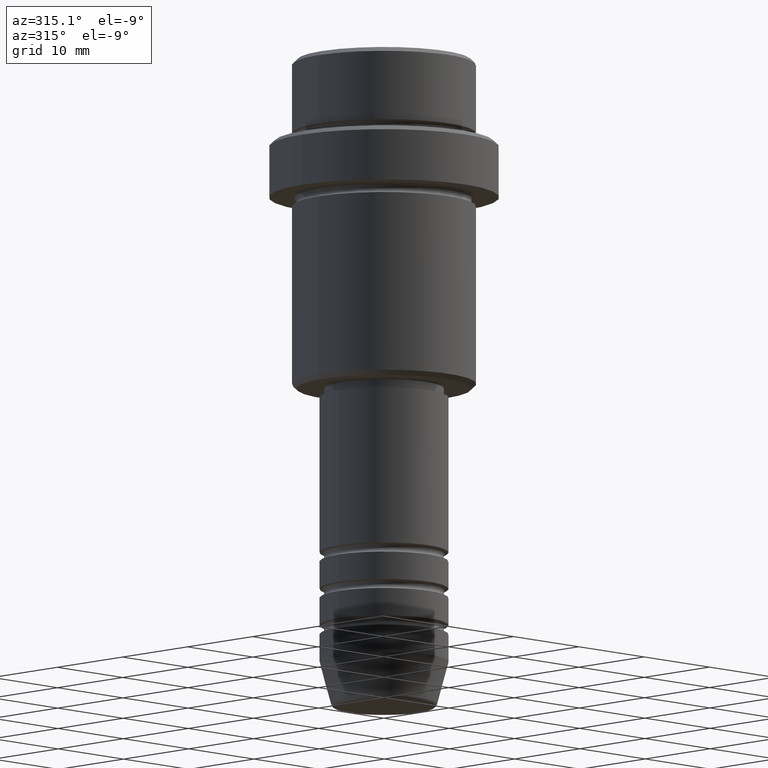
[diagram: clean part render]
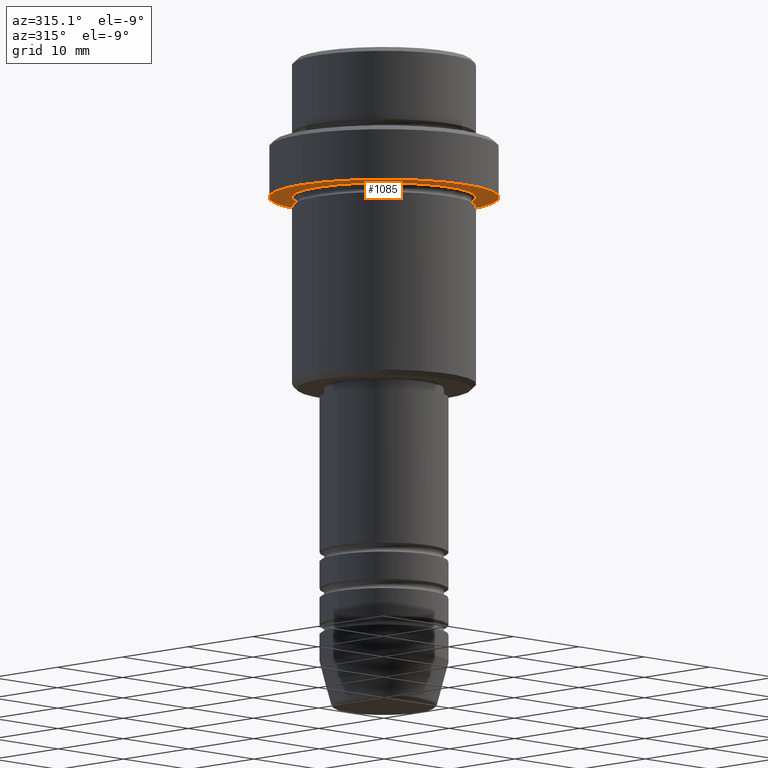
[diagram: same view with one face highlighted and labeled with its STEP entity id]
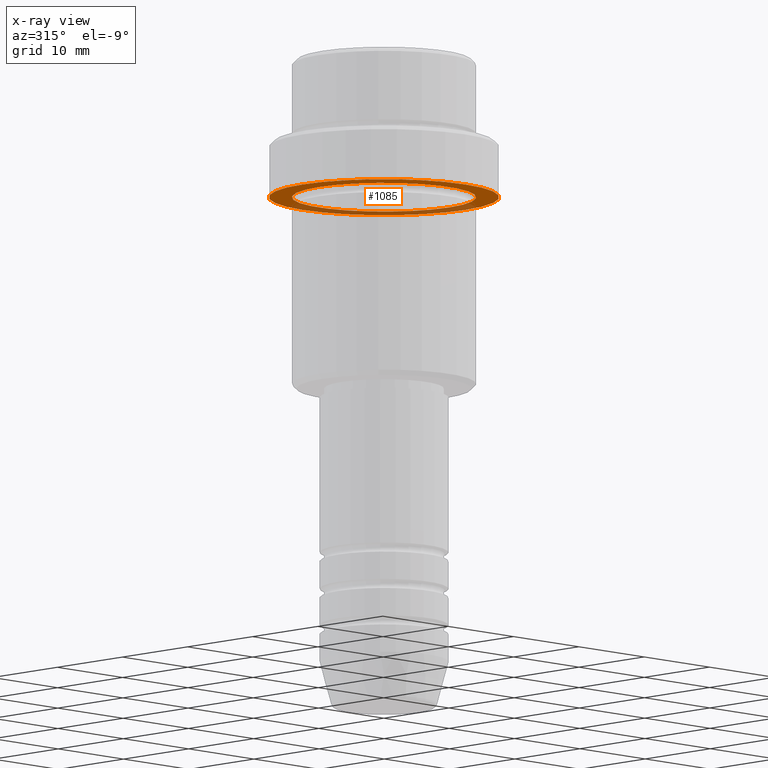
[diagram: x-ray of the same camera — body ghosted, the highlighted face saturated]
A machine part, auxiliary view. The second image highlights one B-rep face of the part: STEP entity #1085.
The next image is the same camera in x-ray: the body ghosted, the highlighted face saturated — about 33% of this face is hidden behind the body in this view.
In plain terms, the highlighted planar face has unit normal (0, 0, -1).
Its self-contained STEP definition (entity closure, byte-faithful):
#9 = VERTEX_POINT ( 'NONE', #75 ) ;
#14 = ORIENTED_EDGE ( 'NONE', *, *, #680, .T. ) ;
#52 = DIRECTION ( 'NONE',  ( -0.000000000000000000, -0.000000000000000000, 1.000000000000000000 ) ) ;
#74 = CIRCLE ( 'NONE', #925, 12.50000000000000000 ) ;
#75 = CARTESIAN_POINT ( 'NONE',  ( 12.50000000000000000, 0.000000000000000000, -15.00000000000000178 ) ) ;
#79 = CARTESIAN_POINT ( 'NONE',  ( 0.000000000000000000, 12.50000000000000000, -15.00000000000000000 ) ) ;
#103 = EDGE_CURVE ( 'NONE', #9, #1214, #766, .T. ) ;
#135 = AXIS2_PLACEMENT_3D ( 'NONE', #663, #337, #762 ) ;
#241 = DIRECTION ( 'NONE',  ( -0.000000000000000000, -0.000000000000000000, 1.000000000000000000 ) ) ;
#247 = ORIENTED_EDGE ( 'NONE', *, *, #434, .F. ) ;
#254 = AXIS2_PLACEMENT_3D ( 'NONE', #458, #241, #879 ) ;
#266 = EDGE_LOOP ( 'NONE', ( #1257, #247 ) ) ;
#275 = DIRECTION ( 'NONE',  ( -1.000000000000000000, 0.000000000000000000, -0.000000000000000000 ) ) ;
#278 = DIRECTION ( 'NONE',  ( -1.000000000000000000, 0.000000000000000000, 0.000000000000000000 ) ) ;
#323 = ORIENTED_EDGE ( 'NONE', *, *, #1255, .T. ) ;
#337 = DIRECTION ( 'NONE',  ( -0.000000000000000000, -0.000000000000000000, 1.000000000000000000 ) ) ;
#434 = EDGE_CURVE ( 'NONE', #1214, #9, #74, .T. ) ;
#458 = CARTESIAN_POINT ( 'NONE',  ( 0.000000000000000000, 0.000000000000000000, -15.00000000000000000 ) ) ;
#523 = DIRECTION ( 'NONE',  ( 0.000000000000000000, 0.000000000000000000, -1.000000000000000000 ) ) ;
#663 = CARTESIAN_POINT ( 'NONE',  ( 0.000000000000000000, 0.000000000000000000, -15.00000000000000178 ) ) ;
#667 = AXIS2_PLACEMENT_3D ( 'NONE', #825, #52, #278 ) ;
#680 = EDGE_CURVE ( 'NONE', #1323, #1355, #997, .T. ) ;
#762 = DIRECTION ( 'NONE',  ( 1.000000000000000000, 0.000000000000000000, 0.000000000000000000 ) ) ;
#766 = CIRCLE ( 'NONE', #135, 12.50000000000000000 ) ;
#772 = CARTESIAN_POINT ( 'NONE',  ( -12.50000000000000000, 1.530808498934191521E-15, -15.00000000000000178 ) ) ;
#825 = CARTESIAN_POINT ( 'NONE',  ( 0.000000000000000000, 0.000000000000000000, -15.00000000000000000 ) ) ;
#837 = DIRECTION ( 'NONE',  ( -0.000000000000000000, -0.000000000000000000, 1.000000000000000000 ) ) ;
#842 = PLANE ( 'NONE',  #1205 ) ;
#852 = CARTESIAN_POINT ( 'NONE',  ( -9.999999999999994671, 0.000000000000000000, -15.00000000000000000 ) ) ;
#879 = DIRECTION ( 'NONE',  ( -1.000000000000000000, 0.000000000000000000, 0.000000000000000000 ) ) ;
#925 = AXIS2_PLACEMENT_3D ( 'NONE', #1280, #837, #1062 ) ;
#929 = EDGE_LOOP ( 'NONE', ( #323, #14 ) ) ;
#997 = CIRCLE ( 'NONE', #667, 9.999999999999994671 ) ;
#1004 = CIRCLE ( 'NONE', #254, 9.999999999999994671 ) ;
#1035 = FACE_BOUND ( 'NONE', #929, .T. ) ;
#1062 = DIRECTION ( 'NONE',  ( 1.000000000000000000, 0.000000000000000000, 0.000000000000000000 ) ) ;
#1072 = FACE_OUTER_BOUND ( 'NONE', #266, .T. ) ;
#1085 = ADVANCED_FACE ( 'NONE', ( #1035, #1072 ), #842, .T. ) ;
#1205 = AXIS2_PLACEMENT_3D ( 'NONE', #79, #523, #275 ) ;
#1214 = VERTEX_POINT ( 'NONE', #772 ) ;
#1255 = EDGE_CURVE ( 'NONE', #1355, #1323, #1004, .T. ) ;
#1257 = ORIENTED_EDGE ( 'NONE', *, *, #103, .F. ) ;
#1280 = CARTESIAN_POINT ( 'NONE',  ( 0.000000000000000000, 0.000000000000000000, -15.00000000000000178 ) ) ;
#1323 = VERTEX_POINT ( 'NONE', #1367 ) ;
#1355 = VERTEX_POINT ( 'NONE', #852 ) ;
#1367 = CARTESIAN_POINT ( 'NONE',  ( 9.999999999999994671, 1.224646799147352665E-15, -15.00000000000000000 ) ) ;